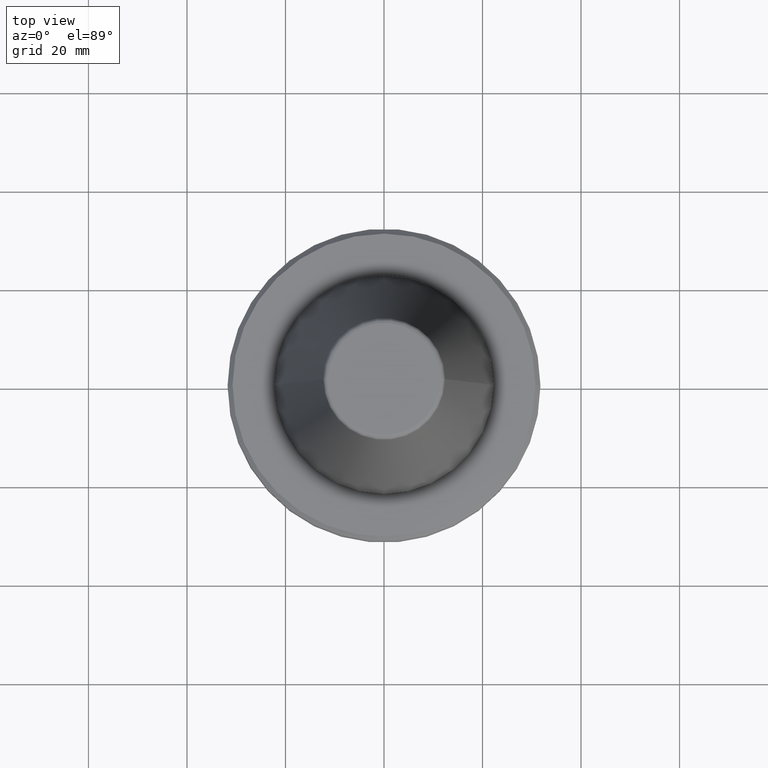
[diagram: clean part render]
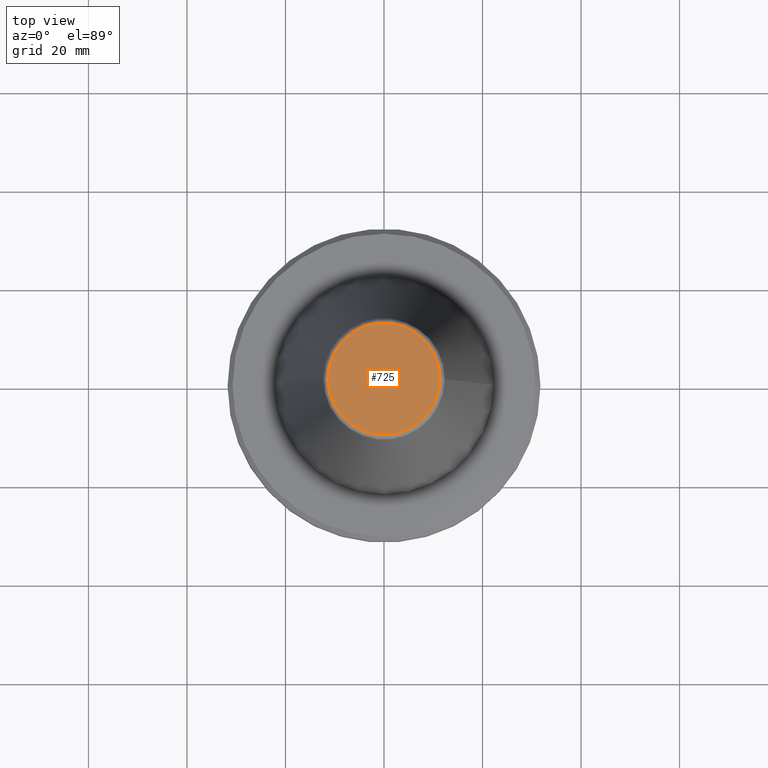
[diagram: same view with one face highlighted and labeled with its STEP entity id]
A machine part, top view. The second image highlights one B-rep face of the part: STEP entity #725.
In plain terms, the highlighted planar face has unit normal (0, 0, -1).
Its self-contained STEP definition (entity closure, byte-faithful):
#53 = CARTESIAN_POINT ( 'NONE',  ( 11.38516261637416200, 0.0000000000000000000, 68.40000000000014800 ) ) ;
#65 = PLANE ( 'NONE',  #90 ) ;
#87 = ORIENTED_EDGE ( 'NONE', *, *, #1019, .T. ) ;
#90 = AXIS2_PLACEMENT_3D ( 'NONE', #502, #165, #781 ) ;
#109 = DIRECTION ( 'NONE',  ( -0.0000000000000000000, -0.0000000000000000000, 1.000000000000000000 ) ) ;
#147 = CIRCLE ( 'NONE', #1016, 11.38516261637416200 ) ;
#157 = FACE_OUTER_BOUND ( 'NONE', #172, .T. ) ;
#165 = DIRECTION ( 'NONE',  ( 0.0000000000000000000, 0.0000000000000000000, -1.000000000000000000 ) ) ;
#172 = EDGE_LOOP ( 'NONE', ( #87, #759 ) ) ;
#182 = CARTESIAN_POINT ( 'NONE',  ( 0.0000000000000000000, 0.0000000000000000000, 68.40000000000014800 ) ) ;
#207 = CIRCLE ( 'NONE', #510, 11.38516261637416200 ) ;
#210 = CARTESIAN_POINT ( 'NONE',  ( -11.38516261637416200, 1.454871703576347500E-015, 68.40000000000014800 ) ) ;
#257 = EDGE_CURVE ( 'NONE', #884, #581, #207, .T. ) ;
#425 = DIRECTION ( 'NONE',  ( 1.000000000000000000, 0.0000000000000000000, 0.0000000000000000000 ) ) ;
#439 = CARTESIAN_POINT ( 'NONE',  ( 0.0000000000000000000, 0.0000000000000000000, 68.40000000000014800 ) ) ;
#502 = CARTESIAN_POINT ( 'NONE',  ( 0.0000000000000000000, 11.38516261637416200, 68.40000000000020500 ) ) ;
#510 = AXIS2_PLACEMENT_3D ( 'NONE', #182, #109, #425 ) ;
#525 = DIRECTION ( 'NONE',  ( 1.000000000000000000, 0.0000000000000000000, 0.0000000000000000000 ) ) ;
#581 = VERTEX_POINT ( 'NONE', #53 ) ;
#725 = ADVANCED_FACE ( 'NONE', ( #157 ), #65, .F. ) ;
#759 = ORIENTED_EDGE ( 'NONE', *, *, #257, .T. ) ;
#781 = DIRECTION ( 'NONE',  ( -1.000000000000000000, 0.0000000000000000000, -0.0000000000000000000 ) ) ;
#884 = VERTEX_POINT ( 'NONE', #210 ) ;
#1016 = AXIS2_PLACEMENT_3D ( 'NONE', #439, #1087, #525 ) ;
#1019 = EDGE_CURVE ( 'NONE', #581, #884, #147, .T. ) ;
#1087 = DIRECTION ( 'NONE',  ( -0.0000000000000000000, -0.0000000000000000000, 1.000000000000000000 ) ) ;